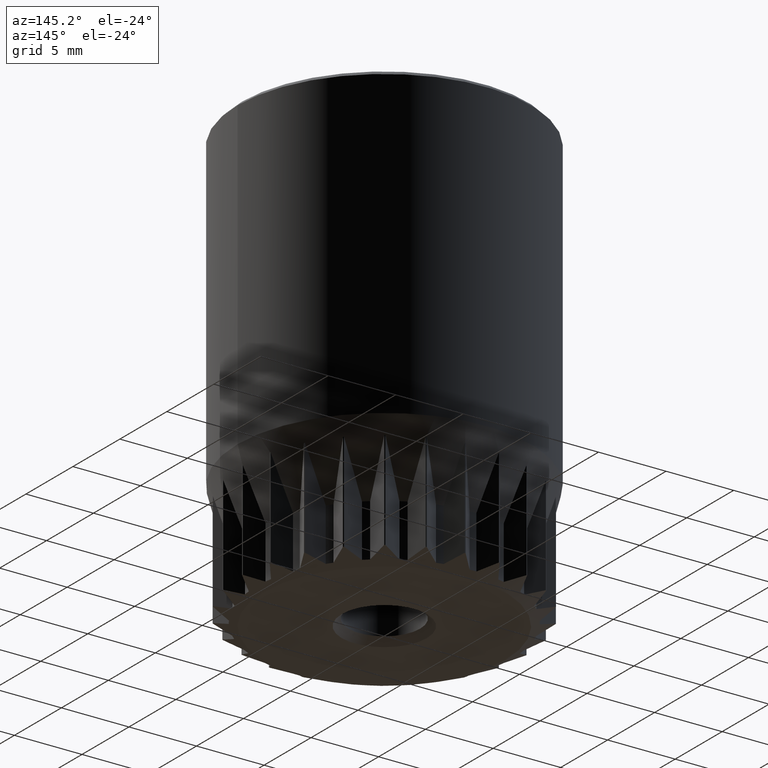
[diagram: clean part render]
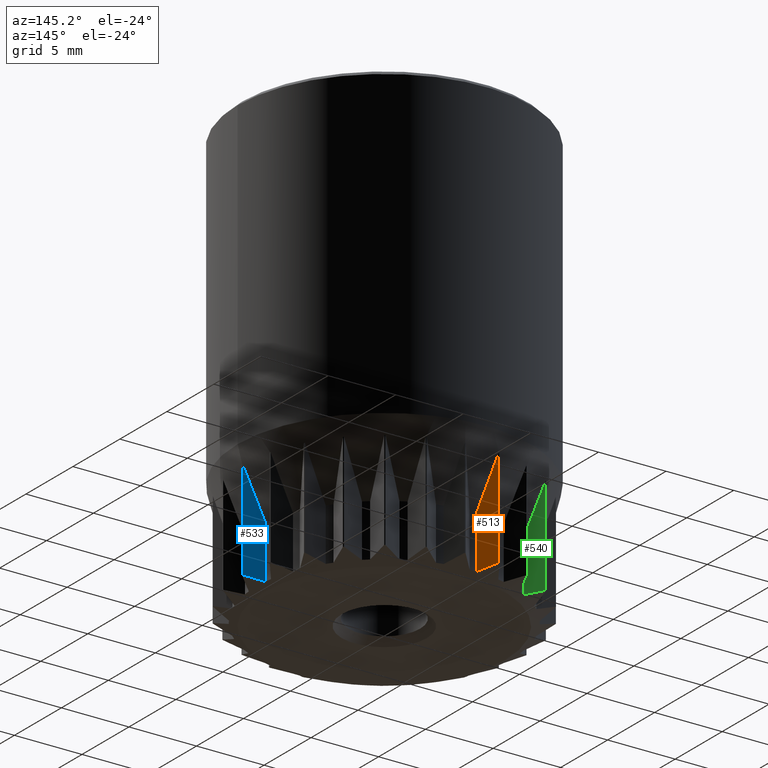
[diagram: same view with three faces highlighted in distinct colors, each labeled with its STEP entity id]
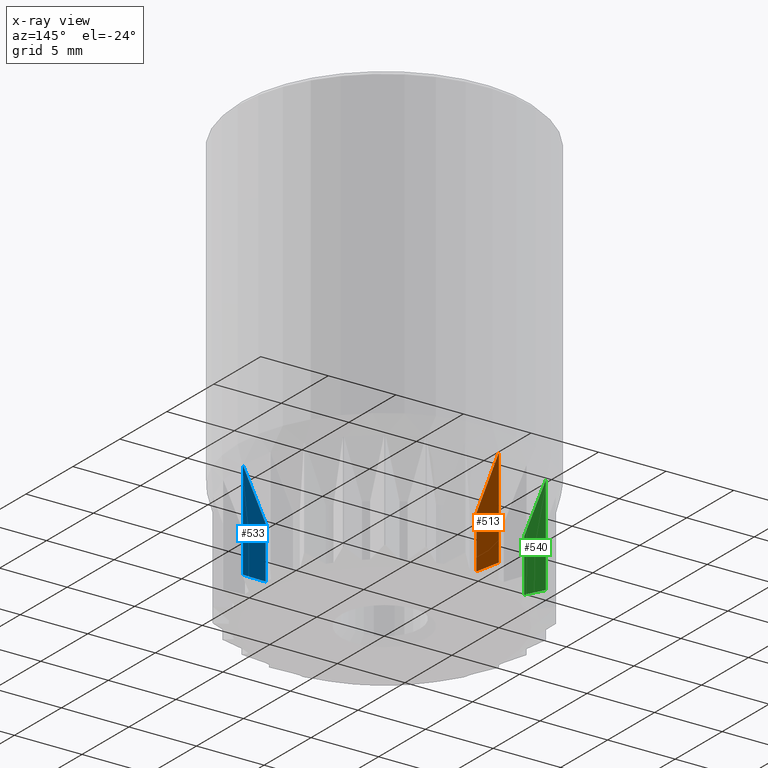
[diagram: x-ray of the same camera — body ghosted, the three highlighted faces saturated]
A machine part, auxiliary view with three faces highlighted in distinct colors.
The next image is the same camera in x-ray (body ghosted, the three faces saturated) — at least one of them is partly hidden behind the body in this view.
Their STEP definitions:

[orange] entity #513 — the highlighted planar face has unit normal (0.7071, 0.7071, 0).
#143=B_SPLINE_CURVE_WITH_KNOTS('',3,(#3446,#3447,#3448,#3449),.UNSPECIFIED.,
.F.,.F.,(4,4),(0.,1.),.UNSPECIFIED.);
#163=B_SPLINE_CURVE_WITH_KNOTS('',3,(#3579,#3580,#3581,#3582),.UNSPECIFIED.,
.F.,.F.,(4,4),(0.,1.),.UNSPECIFIED.);
#243=LINE('',#3144,#347);
#267=LINE('',#3584,#371);
#347=VECTOR('',#2567,1.);
#371=VECTOR('',#2737,1.);
#513=ADVANCED_FACE('',(#692),#594,.T.);
#594=PLANE('',#2313);
#692=FACE_OUTER_BOUND('',#810,.T.);
#810=EDGE_LOOP('',(#1154,#1155,#1156,#1157));
#1154=ORIENTED_EDGE('',*,*,#1956,.F.);
#1155=ORIENTED_EDGE('',*,*,#1957,.T.);
#1156=ORIENTED_EDGE('',*,*,#1917,.T.);
#1157=ORIENTED_EDGE('',*,*,#1822,.F.);
#1605=VERTEX_POINT('',#3143);
#1606=VERTEX_POINT('',#3145);
#1680=VERTEX_POINT('',#3450);
#1700=VERTEX_POINT('',#3583);
#1822=EDGE_CURVE('',#1605,#1606,#243,.T.);
#1917=EDGE_CURVE('',#1680,#1606,#143,.T.);
#1956=EDGE_CURVE('',#1700,#1605,#163,.T.);
#1957=EDGE_CURVE('',#1700,#1680,#267,.T.);
#2313=AXIS2_PLACEMENT_3D('',#3585,#2738,#2739);
#2567=DIRECTION('',(0.,0.,1.));
#2737=DIRECTION('',(0.,0.,1.));
#2738=DIRECTION('',(0.70710678118655,0.707106781186546,0.));
#2739=DIRECTION('',(-0.707106781186546,0.70710678118655,0.));
#3143=CARTESIAN_POINT('',(-0.250000000002449,9.44669254289811,-31.756980377552));
#3144=CARTESIAN_POINT('',(-0.250000000002448,9.44669254289811,-32.));
#3145=CARTESIAN_POINT('',(-0.250000000002381,9.44669254289557,-27.8727406610313));
#3446=CARTESIAN_POINT('',(-1.23090853237245,10.4276010752681,-23.9540873130839));
#3447=CARTESIAN_POINT('',(-0.914442058047622,10.1111346009433,-25.265468630222));
#3448=CARTESIAN_POINT('',(-0.589431409399257,9.78612395229245,-26.5728961879071));
#3449=CARTESIAN_POINT('',(-0.250000000002381,9.44669254289557,-27.8727406610313));
#3450=CARTESIAN_POINT('',(-1.23090853237245,10.4276010752681,-23.9540873130839));
#3579=CARTESIAN_POINT('',(-1.23090853237245,10.4276010752681,-31.2673573364904));
#3580=CARTESIAN_POINT('',(-0.905305603093082,10.1019981459887,-31.4359406505769));
#3581=CARTESIAN_POINT('',(-0.57844846501571,9.77514100791137,-31.5998241477682));
#3582=CARTESIAN_POINT('',(-0.250000000002449,9.44669254289811,-31.756980377552));
#3583=CARTESIAN_POINT('',(-1.23090853237245,10.4276010752681,-31.2673573364904));
#3584=CARTESIAN_POINT('',(-1.23090853237245,10.4276010752681,-32.));
#3585=CARTESIAN_POINT('',(-0.249999999999975,9.44669254289563,-37.5));

[blue] entity #533 — the highlighted planar face has unit normal (0.6167, 0.7872, 0).
#130=B_SPLINE_CURVE_WITH_KNOTS('',3,(#3376,#3377,#3378,#3379),.UNSPECIFIED.,
.F.,.F.,(4,4),(0.,1.),.UNSPECIFIED.);
#176=B_SPLINE_CURVE_WITH_KNOTS('',3,(#3684,#3685,#3686,#3687),.UNSPECIFIED.,
.F.,.F.,(4,4),(0.,1.),.UNSPECIFIED.);
#234=LINE('',#3103,#338);
#280=LINE('',#3689,#384);
#338=VECTOR('',#2532,1.);
#384=VECTOR('',#2804,1.);
#533=ADVANCED_FACE('',(#712),#607,.T.);
#607=PLANE('',#2340);
#712=FACE_OUTER_BOUND('',#830,.T.);
#830=EDGE_LOOP('',(#1234,#1235,#1236,#1237));
#1234=ORIENTED_EDGE('',*,*,#1989,.F.);
#1235=ORIENTED_EDGE('',*,*,#1804,.T.);
#1236=ORIENTED_EDGE('',*,*,#1898,.T.);
#1237=ORIENTED_EDGE('',*,*,#1990,.T.);
#1587=VERTEX_POINT('',#3104);
#1588=VERTEX_POINT('',#3105);
#1667=VERTEX_POINT('',#3375);
#1713=VERTEX_POINT('',#3688);
#1804=EDGE_CURVE('',#1587,#1588,#234,.T.);
#1898=EDGE_CURVE('',#1588,#1667,#130,.T.);
#1989=EDGE_CURVE('',#1587,#1713,#176,.T.);
#1990=EDGE_CURVE('',#1667,#1713,#280,.T.);
#2340=AXIS2_PLACEMENT_3D('',#3690,#2805,#2806);
#2532=DIRECTION('',(0.,0.,1.));
#2804=DIRECTION('',(0.,0.,-1.));
#2805=DIRECTION('',(0.616718872628542,0.787183480609051,0.));
#2806=DIRECTION('',(-0.787183480609051,0.616718872628542,0.));
#3103=CARTESIAN_POINT('',(9.407949688275,0.890495739986671,-37.5));
#3104=CARTESIAN_POINT('',(9.407949688275,0.890495739986671,-31.7569803775532));
#3105=CARTESIAN_POINT('',(9.40794968827247,0.890495739986431,-27.8727406610313));
#3375=CARTESIAN_POINT('',(10.4999417511632,0.0349745933504778,-23.9540873130839));
#3376=CARTESIAN_POINT('',(9.40794968827247,0.890495739986431,-27.8727406610313));
#3377=CARTESIAN_POINT('',(9.78582019579144,0.594453102993628,-26.5728961879071));
#3378=CARTESIAN_POINT('',(10.1476368555192,0.310987852540036,-25.265468630222));
#3379=CARTESIAN_POINT('',(10.4999417511632,0.0349745933504778,-23.9540873130839));
#3684=CARTESIAN_POINT('',(9.407949688275,0.890495739986671,-31.7569803775532));
#3685=CARTESIAN_POINT('',(9.7735934817853,0.604032121691703,-31.5998241477694));
#3686=CARTESIAN_POINT('',(10.1374657376584,0.318956414501757,-31.435940650577));
#3687=CARTESIAN_POINT('',(10.4999417511632,0.0349745933504785,-31.2673573364904));
#3688=CARTESIAN_POINT('',(10.4999417511632,0.0349745933504785,-31.2673573364904));
#3689=CARTESIAN_POINT('',(10.4999417511632,0.0349745933504778,-10.4999999999997));
#3690=CARTESIAN_POINT('',(10.5445835212605,-2.5804011705155E-014,-37.5));

[green] entity #540 — the highlighted planar face has unit normal (0.2975, 0.9547, 0).
#147=B_SPLINE_CURVE_WITH_KNOTS('',3,(#3468,#3469,#3470,#3471),.UNSPECIFIED.,
.F.,.F.,(4,4),(0.,1.),.UNSPECIFIED.);
#181=B_SPLINE_CURVE_WITH_KNOTS('',3,(#3723,#3724,#3725,#3726),.UNSPECIFIED.,
.F.,.F.,(4,4),(0.,1.),.UNSPECIFIED.);
#225=LINE('',#3063,#329);
#285=LINE('',#3728,#389);
#329=VECTOR('',#2495,1.);
#389=VECTOR('',#2827,1.);
#540=ADVANCED_FACE('',(#719),#612,.T.);
#612=PLANE('',#2349);
#719=FACE_OUTER_BOUND('',#837,.T.);
#837=EDGE_LOOP('',(#1262,#1263,#1264,#1265));
#1262=ORIENTED_EDGE('',*,*,#2001,.F.);
#1263=ORIENTED_EDGE('',*,*,#2002,.T.);
#1264=ORIENTED_EDGE('',*,*,#1923,.T.);
#1265=ORIENTED_EDGE('',*,*,#1786,.F.);
#1569=VERTEX_POINT('',#3062);
#1570=VERTEX_POINT('',#3064);
#1684=VERTEX_POINT('',#3472);
#1718=VERTEX_POINT('',#3727);
#1786=EDGE_CURVE('',#1569,#1570,#225,.T.);
#1923=EDGE_CURVE('',#1684,#1570,#147,.T.);
#2001=EDGE_CURVE('',#1718,#1569,#181,.T.);
#2002=EDGE_CURVE('',#1718,#1684,#285,.T.);
#2349=AXIS2_PLACEMENT_3D('',#3729,#2828,#2829);
#2495=DIRECTION('',(0.,0.,1.));
#2827=DIRECTION('',(0.,0.,1.));
#2828=DIRECTION('',(0.297503053855206,0.954720866508545,0.));
#2829=DIRECTION('',(-0.954720866508545,0.297503053855206,0.));
#3062=CARTESIAN_POINT('',(-4.61146093027329,8.2484500415903,-31.756980377552));
#3063=CARTESIAN_POINT('',(-4.61146093027329,8.2484500415903,-32.));
#3064=CARTESIAN_POINT('',(-4.61146093027205,8.24845004158808,-27.8727406610313));
#3468=CARTESIAN_POINT('',(-5.93586322552274,8.66115048754418,-23.9540873130839));
#3469=CARTESIAN_POINT('',(-5.50857677512085,8.52800264472978,-25.265468630222));
#3470=CARTESIAN_POINT('',(-5.06975415828468,8.39125998706831,-26.5728961879071));
#3471=CARTESIAN_POINT('',(-4.61146093027205,8.24845004158808,-27.8727406610313));
#3472=CARTESIAN_POINT('',(-5.93586322552274,8.66115048754418,-23.9540873130839));
#3723=CARTESIAN_POINT('',(-5.93586322552274,8.66115048754418,-31.2673573364904));
#3724=CARTESIAN_POINT('',(-5.49624092370054,8.52415863796488,-31.4359406505769));
#3725=CARTESIAN_POINT('',(-5.0549252152497,8.38663910153897,-31.5998241477682));
#3726=CARTESIAN_POINT('',(-4.61146093027329,8.2484500415903,-31.756980377552));
#3727=CARTESIAN_POINT('',(-5.93586322552274,8.66115048754418,-31.2673573364904));
#3728=CARTESIAN_POINT('',(-5.93586322552274,8.66115048754418,-32.));
#3729=CARTESIAN_POINT('',(-4.61146093026995,8.24845004158925,-37.5));